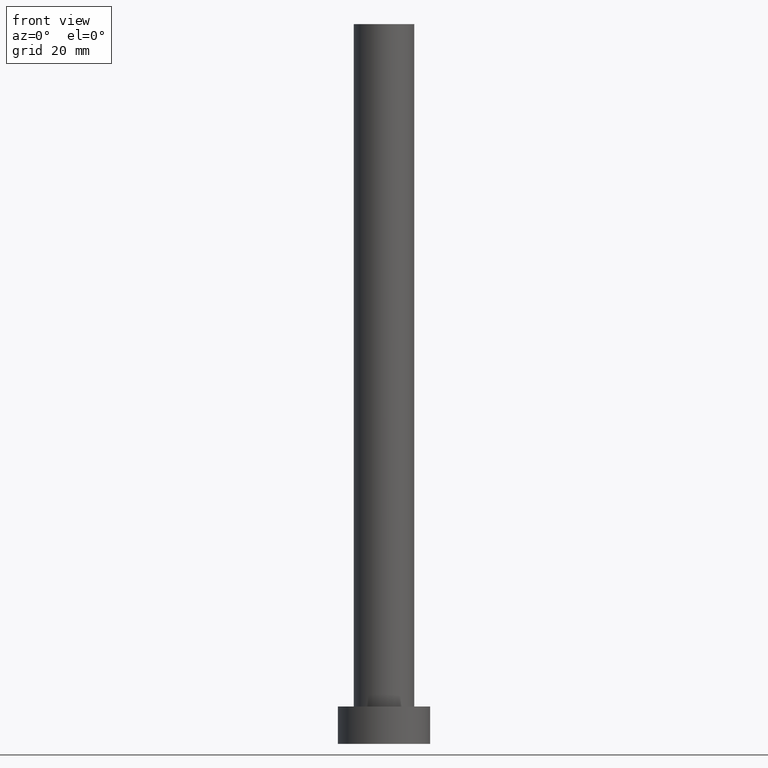
[diagram: clean part render]
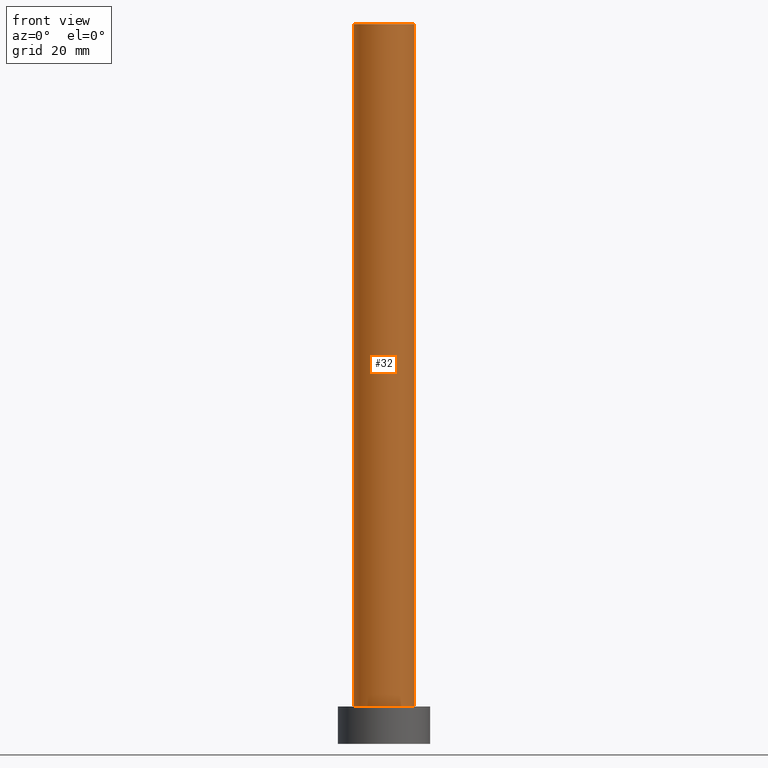
[diagram: same view with one face highlighted and labeled with its STEP entity id]
A machine part, front view. The second image highlights one B-rep face of the part: STEP entity #32.
In plain terms, the highlighted cylindrical surface (edge-blend (fillet) strip) has radius 5.25 mm, axis along (-0, -0, -1).
Its self-contained STEP definition (entity closure, byte-faithful):
#4 = VECTOR ( 'NONE', #113, 1000.000000000000000 ) ;
#12 = CARTESIAN_POINT ( 'NONE',  ( 5.250000000000000888, 6.429395695523605139E-16, 125.0000000000000000 ) ) ;
#22 = CIRCLE ( 'NONE', #253, 5.250000000000000888 ) ;
#23 = VERTEX_POINT ( 'NONE', #12 ) ;
#27 = VERTEX_POINT ( 'NONE', #130 ) ;
#30 = CARTESIAN_POINT ( 'NONE',  ( 0.000000000000000000, 0.000000000000000000, 125.0000000000000000 ) ) ;
#32 = ADVANCED_FACE ( 'NONE', ( #108 ), #72, .T. ) ;
#33 = CARTESIAN_POINT ( 'NONE',  ( -5.250000000000000888, 0.000000000000000000, 125.0000000000000000 ) ) ;
#36 = VECTOR ( 'NONE', #87, 1000.000000000000000 ) ;
#43 = EDGE_CURVE ( 'NONE', #27, #229, #91, .T. ) ;
#51 = CARTESIAN_POINT ( 'NONE',  ( 0.000000000000000000, 0.000000000000000000, 6.500000000000000000 ) ) ;
#63 = CARTESIAN_POINT ( 'NONE',  ( 0.000000000000000000, 0.000000000000000000, 125.0000000000000000 ) ) ;
#70 = CIRCLE ( 'NONE', #217, 5.250000000000000888 ) ;
#72 = CYLINDRICAL_SURFACE ( 'NONE', #119, 5.250000000000000888 ) ;
#76 = CARTESIAN_POINT ( 'NONE',  ( 5.250000000000000888, 6.429395695523605139E-16, 125.0000000000000000 ) ) ;
#87 = DIRECTION ( 'NONE',  ( -0.000000000000000000, -0.000000000000000000, -1.000000000000000000 ) ) ;
#91 = LINE ( 'NONE', #33, #36 ) ;
#108 = FACE_OUTER_BOUND ( 'NONE', #209, .T. ) ;
#111 = DIRECTION ( 'NONE',  ( 0.000000000000000000, 0.000000000000000000, 1.000000000000000000 ) ) ;
#112 = EDGE_CURVE ( 'NONE', #229, #247, #70, .T. ) ;
#113 = DIRECTION ( 'NONE',  ( -0.000000000000000000, -0.000000000000000000, -1.000000000000000000 ) ) ;
#119 = AXIS2_PLACEMENT_3D ( 'NONE', #30, #194, #188 ) ;
#121 = DIRECTION ( 'NONE',  ( 0.000000000000000000, 0.000000000000000000, 1.000000000000000000 ) ) ;
#128 = ORIENTED_EDGE ( 'NONE', *, *, #43, .T. ) ;
#130 = CARTESIAN_POINT ( 'NONE',  ( -5.250000000000000888, 0.000000000000000000, 125.0000000000000000 ) ) ;
#134 = LINE ( 'NONE', #76, #4 ) ;
#146 = EDGE_CURVE ( 'NONE', #23, #247, #134, .T. ) ;
#159 = DIRECTION ( 'NONE',  ( 1.000000000000000000, 0.000000000000000000, 0.000000000000000000 ) ) ;
#186 = ORIENTED_EDGE ( 'NONE', *, *, #146, .F. ) ;
#187 = ORIENTED_EDGE ( 'NONE', *, *, #246, .F. ) ;
#188 = DIRECTION ( 'NONE',  ( -1.000000000000000000, 0.000000000000000000, 0.000000000000000000 ) ) ;
#189 = DIRECTION ( 'NONE',  ( 1.000000000000000000, 0.000000000000000000, 0.000000000000000000 ) ) ;
#194 = DIRECTION ( 'NONE',  ( -0.000000000000000000, -0.000000000000000000, -1.000000000000000000 ) ) ;
#197 = CARTESIAN_POINT ( 'NONE',  ( 5.250000000000000888, 6.429395695523605139E-16, 6.500000000000000000 ) ) ;
#208 = ORIENTED_EDGE ( 'NONE', *, *, #112, .T. ) ;
#209 = EDGE_LOOP ( 'NONE', ( #186, #187, #128, #208 ) ) ;
#217 = AXIS2_PLACEMENT_3D ( 'NONE', #51, #111, #189 ) ;
#220 = CARTESIAN_POINT ( 'NONE',  ( -5.250000000000000888, 0.000000000000000000, 6.500000000000000000 ) ) ;
#229 = VERTEX_POINT ( 'NONE', #220 ) ;
#246 = EDGE_CURVE ( 'NONE', #27, #23, #22, .T. ) ;
#247 = VERTEX_POINT ( 'NONE', #197 ) ;
#253 = AXIS2_PLACEMENT_3D ( 'NONE', #63, #121, #159 ) ;